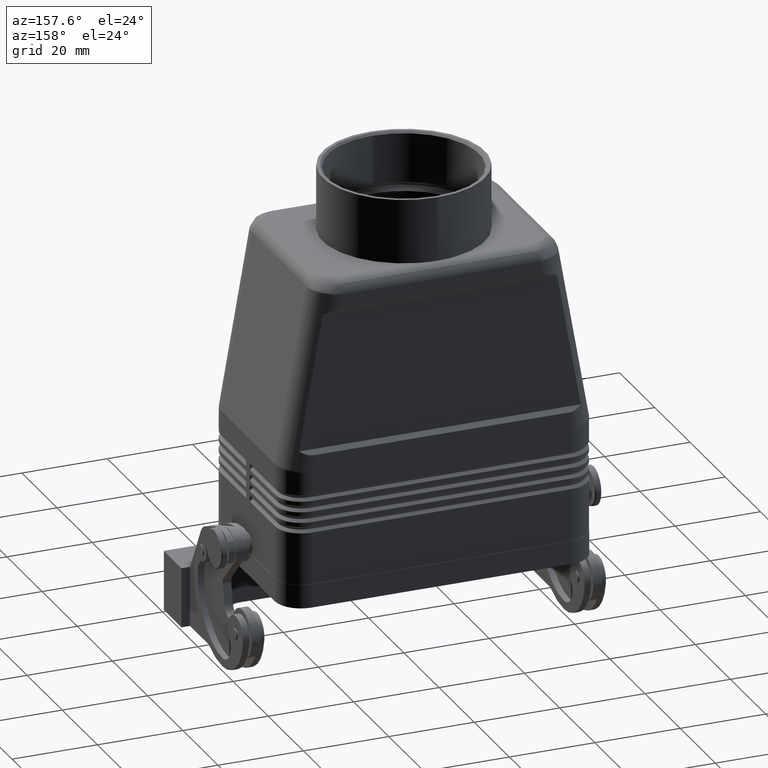
[diagram: clean part render]
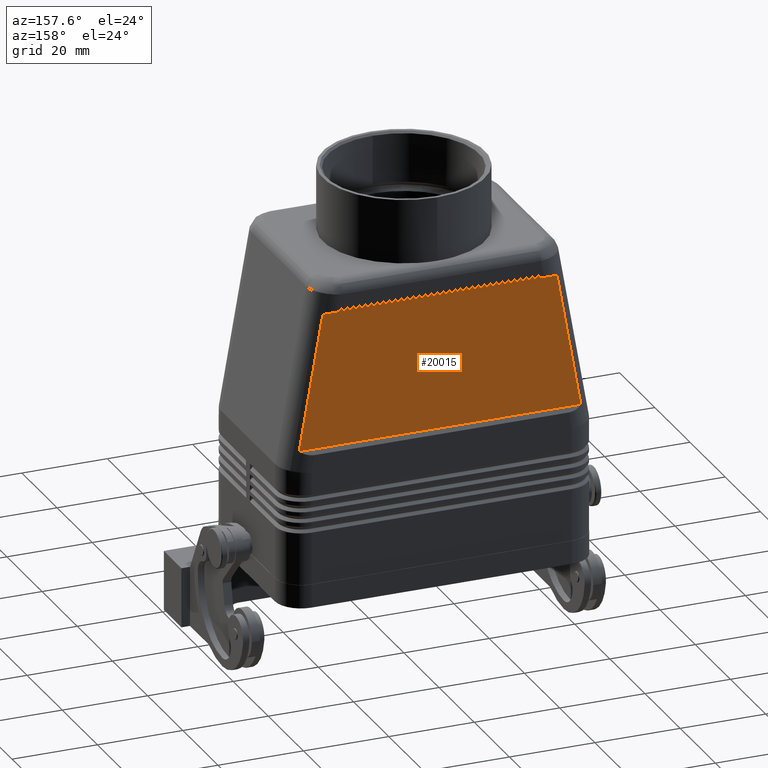
[diagram: same view with one face highlighted and labeled with its STEP entity id]
A machine part, auxiliary view. The second image highlights one B-rep face of the part: STEP entity #20015.
In plain terms, the highlighted face is a freeform B-spline surface patch.
Its self-contained STEP definition (entity closure, byte-faithful):
#4480=CARTESIAN_POINT('',(32.981757989264295,20.499999999999993,37.000000000000021));
#4481=VERTEX_POINT('',#4480);
#4489=CARTESIAN_POINT('',(27.427458096947660,20.500000000000000,68.499999999999986));
#4490=VERTEX_POINT('',#4489);
#4491=CARTESIAN_POINT('',(32.981757989264295,20.499999999999993,37.000000000000021));
#4492=DIRECTION('',(-0.173648177666930,2.221422E-016,0.984807753012208));
#4493=VECTOR('',#4492,31.985938274400930);
#4494=LINE('',#4491,#4493);
#4495=EDGE_CURVE('',#4481,#4490,#4494,.T.);
#4552=CARTESIAN_POINT('',(-27.427458096947639,20.500000000000000,68.499999999999986));
#4553=VERTEX_POINT('',#4552);
#4561=CARTESIAN_POINT('',(-32.981757989264281,20.499999999999993,37.000000000000021));
#4562=VERTEX_POINT('',#4561);
#4563=CARTESIAN_POINT('',(-27.427458096947639,20.500000000000000,68.499999999999986));
#4564=DIRECTION('',(-0.173648177666930,-2.221422E-016,-0.984807753012208));
#4565=VECTOR('',#4564,31.985938274400930);
#4566=LINE('',#4563,#4565);
#4567=EDGE_CURVE('',#4553,#4562,#4566,.T.);
#19990=CARTESIAN_POINT('',(27.427458096947660,20.500000000000000,68.499999999999986));
#19991=DIRECTION('',(-1.0,0.0,0.0));
#19992=VECTOR('',#19991,54.854916193895299);
#19993=LINE('',#19990,#19992);
#19994=EDGE_CURVE('',#4490,#4553,#19993,.T.);
#19999=CARTESIAN_POINT('',(32.981757989264317,20.499999999999996,37.000000000000021));
#20000=CARTESIAN_POINT('',(32.981757989264317,20.500000000000000,68.500000000000000));
#20001=CARTESIAN_POINT('',(-32.981757989264274,20.499999999999996,37.000000000000021));
#20002=CARTESIAN_POINT('',(-32.981757989264274,20.500000000000004,68.500000000000000));
#20003=B_SPLINE_SURFACE_WITH_KNOTS('',1,1,((#19999,#20001),(#20000,#20002)),.UNSPECIFIED.,.F.,.F.,.U.,(2,2),(2,2),(0.0,31.499999999999979),(0.0,65.963515978528591),.UNSPECIFIED.);
#20004=ORIENTED_EDGE('',*,*,#4567,.F.);
#20005=ORIENTED_EDGE('',*,*,#19994,.F.);
#20006=ORIENTED_EDGE('',*,*,#4495,.F.);
#20007=CARTESIAN_POINT('',(32.981757989264295,20.499999999999993,37.000000000000021));
#20008=DIRECTION('',(-1.0,0.0,0.0));
#20009=VECTOR('',#20008,65.963515978528577);
#20010=LINE('',#20007,#20009);
#20011=EDGE_CURVE('',#4481,#4562,#20010,.T.);
#20012=ORIENTED_EDGE('',*,*,#20011,.T.);
#20013=EDGE_LOOP('',(#20004,#20005,#20006,#20012));
#20014=FACE_OUTER_BOUND('',#20013,.T.);
#20015=ADVANCED_FACE('',(#20014),#20003,.F.);